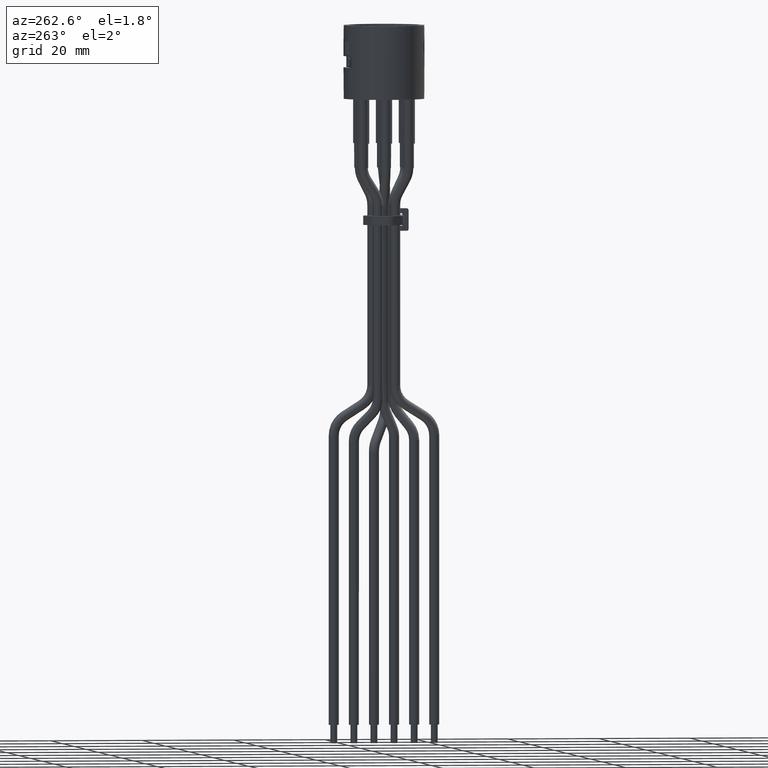
[diagram: clean part render]
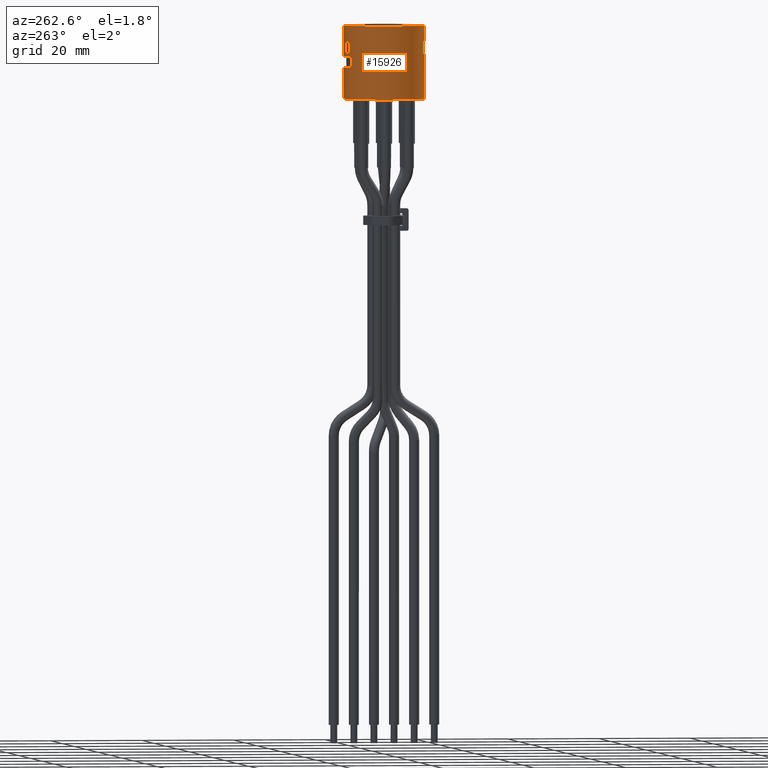
[diagram: same view with one face highlighted and labeled with its STEP entity id]
A machine part, auxiliary view. The second image highlights one B-rep face of the part: STEP entity #15926.
In plain terms, the highlighted cylindrical surface (bore or boss wall) has radius 8.8 mm, axis along (-0, -0, 1).
Its self-contained STEP definition (entity closure, byte-faithful):
#146=ELLIPSE('',#16801,12.4450793488832,8.8);
#147=ELLIPSE('',#16803,12.4450793488832,8.8);
#311=FACE_BOUND('',#2140,.T.);
#312=FACE_BOUND('',#2141,.T.);
#313=FACE_BOUND('',#2142,.T.);
#314=FACE_BOUND('',#2143,.T.);
#315=FACE_BOUND('',#2144,.T.);
#1284=FACE_OUTER_BOUND('',#2139,.T.);
#2139=EDGE_LOOP('',(#12694,#12695,#12696,#12697,#12698,#12699,#12700,#12701,
#12702,#12703,#12704,#12705));
#2140=EDGE_LOOP('',(#12706,#12707,#12708,#12709));
#2141=EDGE_LOOP('',(#12710,#12711,#12712,#12713));
#2142=EDGE_LOOP('',(#12714,#12715,#12716,#12717));
#2143=EDGE_LOOP('',(#12718,#12719,#12720,#12721));
#2144=EDGE_LOOP('',(#12722,#12723,#12724,#12725));
#2708=CIRCLE('',#16734,8.8);
#2753=CIRCLE('',#16828,8.8);
#2754=CIRCLE('',#16829,8.8);
#2755=CIRCLE('',#16831,8.8);
#2756=CIRCLE('',#16832,8.8);
#2757=CIRCLE('',#16834,8.8);
#2758=CIRCLE('',#16835,8.8);
#2759=CIRCLE('',#16836,8.8);
#2760=CIRCLE('',#16837,8.8);
#2761=CIRCLE('',#16838,8.8);
#2762=CIRCLE('',#16839,8.8);
#2763=CIRCLE('',#16840,8.8);
#2764=CIRCLE('',#16841,8.8);
#2765=CIRCLE('',#16842,8.8);
#4118=LINE('',#24287,#5948);
#4119=LINE('',#24288,#5949);
#4190=LINE('',#24876,#6020);
#4192=LINE('',#24880,#6022);
#4194=LINE('',#24894,#6024);
#4195=LINE('',#24895,#6025);
#4196=LINE('',#24900,#6026);
#4197=LINE('',#24903,#6027);
#4198=LINE('',#24908,#6028);
#4199=LINE('',#24911,#6029);
#4200=LINE('',#24916,#6030);
#4201=LINE('',#24919,#6031);
#4202=LINE('',#24924,#6032);
#4203=LINE('',#24927,#6033);
#5948=VECTOR('',#19414,10.);
#5949=VECTOR('',#19415,10.);
#6020=VECTOR('',#19528,10.);
#6022=VECTOR('',#19530,10.);
#6024=VECTOR('',#19550,8.8);
#6025=VECTOR('',#19551,8.8);
#6026=VECTOR('',#19554,10.);
#6027=VECTOR('',#19557,10.);
#6028=VECTOR('',#19560,10.);
#6029=VECTOR('',#19563,10.);
#6030=VECTOR('',#19566,10.);
#6031=VECTOR('',#19569,10.);
#6032=VECTOR('',#19572,10.);
#6033=VECTOR('',#19575,10.);
#7420=VERTEX_POINT('',#23779);
#7612=VERTEX_POINT('',#24277);
#7613=VERTEX_POINT('',#24278);
#7614=VERTEX_POINT('',#24282);
#7615=VERTEX_POINT('',#24283);
#7692=VERTEX_POINT('',#24874);
#7693=VERTEX_POINT('',#24875);
#7694=VERTEX_POINT('',#24877);
#7695=VERTEX_POINT('',#24879);
#7696=VERTEX_POINT('',#24884);
#7697=VERTEX_POINT('',#24888);
#7698=VERTEX_POINT('',#24892);
#7699=VERTEX_POINT('',#24896);
#7700=VERTEX_POINT('',#24897);
#7701=VERTEX_POINT('',#24899);
#7702=VERTEX_POINT('',#24901);
#7703=VERTEX_POINT('',#24904);
#7704=VERTEX_POINT('',#24905);
#7705=VERTEX_POINT('',#24907);
#7706=VERTEX_POINT('',#24909);
#7707=VERTEX_POINT('',#24912);
#7708=VERTEX_POINT('',#24913);
#7709=VERTEX_POINT('',#24915);
#7710=VERTEX_POINT('',#24917);
#7711=VERTEX_POINT('',#24920);
#7712=VERTEX_POINT('',#24921);
#7713=VERTEX_POINT('',#24923);
#7714=VERTEX_POINT('',#24925);
#9242=EDGE_CURVE('',#7420,#7420,#2708,.T.);
#9457=EDGE_CURVE('',#7612,#7613,#146,.T.);
#9459=EDGE_CURVE('',#7614,#7615,#147,.T.);
#9461=EDGE_CURVE('',#7615,#7612,#4118,.T.);
#9462=EDGE_CURVE('',#7613,#7614,#4119,.T.);
#9577=EDGE_CURVE('',#7692,#7693,#4190,.T.);
#9579=EDGE_CURVE('',#7695,#7694,#4192,.T.);
#9581=EDGE_CURVE('',#7693,#7696,#2753,.T.);
#9582=EDGE_CURVE('',#7696,#7695,#2754,.T.);
#9583=EDGE_CURVE('',#7694,#7697,#2755,.T.);
#9584=EDGE_CURVE('',#7697,#7692,#2756,.T.);
#9585=EDGE_CURVE('',#7698,#7698,#2757,.T.);
#9586=EDGE_CURVE('',#7698,#7696,#4194,.T.);
#9587=EDGE_CURVE('',#7697,#7420,#4195,.T.);
#9588=EDGE_CURVE('',#7699,#7700,#2758,.T.);
#9589=EDGE_CURVE('',#7700,#7701,#4196,.T.);
#9590=EDGE_CURVE('',#7701,#7702,#2759,.T.);
#9591=EDGE_CURVE('',#7702,#7699,#4197,.T.);
#9592=EDGE_CURVE('',#7703,#7704,#2760,.T.);
#9593=EDGE_CURVE('',#7704,#7705,#4198,.T.);
#9594=EDGE_CURVE('',#7705,#7706,#2761,.T.);
#9595=EDGE_CURVE('',#7706,#7703,#4199,.T.);
#9596=EDGE_CURVE('',#7707,#7708,#2762,.T.);
#9597=EDGE_CURVE('',#7708,#7709,#4200,.T.);
#9598=EDGE_CURVE('',#7709,#7710,#2763,.T.);
#9599=EDGE_CURVE('',#7710,#7707,#4201,.T.);
#9600=EDGE_CURVE('',#7711,#7712,#2764,.T.);
#9601=EDGE_CURVE('',#7712,#7713,#4202,.T.);
#9602=EDGE_CURVE('',#7713,#7714,#2765,.T.);
#9603=EDGE_CURVE('',#7714,#7711,#4203,.T.);
#12694=ORIENTED_EDGE('',*,*,#9585,.T.);
#12695=ORIENTED_EDGE('',*,*,#9586,.T.);
#12696=ORIENTED_EDGE('',*,*,#9582,.T.);
#12697=ORIENTED_EDGE('',*,*,#9579,.T.);
#12698=ORIENTED_EDGE('',*,*,#9583,.T.);
#12699=ORIENTED_EDGE('',*,*,#9587,.T.);
#12700=ORIENTED_EDGE('',*,*,#9242,.F.);
#12701=ORIENTED_EDGE('',*,*,#9587,.F.);
#12702=ORIENTED_EDGE('',*,*,#9584,.T.);
#12703=ORIENTED_EDGE('',*,*,#9577,.T.);
#12704=ORIENTED_EDGE('',*,*,#9581,.T.);
#12705=ORIENTED_EDGE('',*,*,#9586,.F.);
#12706=ORIENTED_EDGE('',*,*,#9459,.T.);
#12707=ORIENTED_EDGE('',*,*,#9461,.T.);
#12708=ORIENTED_EDGE('',*,*,#9457,.T.);
#12709=ORIENTED_EDGE('',*,*,#9462,.T.);
#12710=ORIENTED_EDGE('',*,*,#9588,.T.);
#12711=ORIENTED_EDGE('',*,*,#9589,.T.);
#12712=ORIENTED_EDGE('',*,*,#9590,.T.);
#12713=ORIENTED_EDGE('',*,*,#9591,.T.);
#12714=ORIENTED_EDGE('',*,*,#9592,.T.);
#12715=ORIENTED_EDGE('',*,*,#9593,.T.);
#12716=ORIENTED_EDGE('',*,*,#9594,.T.);
#12717=ORIENTED_EDGE('',*,*,#9595,.T.);
#12718=ORIENTED_EDGE('',*,*,#9596,.T.);
#12719=ORIENTED_EDGE('',*,*,#9597,.T.);
#12720=ORIENTED_EDGE('',*,*,#9598,.T.);
#12721=ORIENTED_EDGE('',*,*,#9599,.T.);
#12722=ORIENTED_EDGE('',*,*,#9600,.T.);
#12723=ORIENTED_EDGE('',*,*,#9601,.T.);
#12724=ORIENTED_EDGE('',*,*,#9602,.T.);
#12725=ORIENTED_EDGE('',*,*,#9603,.T.);
#15506=CYLINDRICAL_SURFACE('',#16833,8.8);
#15926=ADVANCED_FACE('',(#1284,#311,#312,#313,#314,#315),#15506,.T.);
#16734=AXIS2_PLACEMENT_3D('',#23780,#19122,#19123);
#16801=AXIS2_PLACEMENT_3D('',#24279,#19404,#19405);
#16803=AXIS2_PLACEMENT_3D('',#24284,#19409,#19410);
#16828=AXIS2_PLACEMENT_3D('',#24885,#19536,#19537);
#16829=AXIS2_PLACEMENT_3D('',#24886,#19538,#19539);
#16831=AXIS2_PLACEMENT_3D('',#24889,#19542,#19543);
#16832=AXIS2_PLACEMENT_3D('',#24890,#19544,#19545);
#16833=AXIS2_PLACEMENT_3D('',#24891,#19546,#19547);
#16834=AXIS2_PLACEMENT_3D('',#24893,#19548,#19549);
#16835=AXIS2_PLACEMENT_3D('',#24898,#19552,#19553);
#16836=AXIS2_PLACEMENT_3D('',#24902,#19555,#19556);
#16837=AXIS2_PLACEMENT_3D('',#24906,#19558,#19559);
#16838=AXIS2_PLACEMENT_3D('',#24910,#19561,#19562);
#16839=AXIS2_PLACEMENT_3D('',#24914,#19564,#19565);
#16840=AXIS2_PLACEMENT_3D('',#24918,#19567,#19568);
#16841=AXIS2_PLACEMENT_3D('',#24922,#19570,#19571);
#16842=AXIS2_PLACEMENT_3D('',#24926,#19573,#19574);
#19122=DIRECTION('center_axis',(1.20932309861026E-30,7.67441665772139E-15,
-1.));
#19123=DIRECTION('ref_axis',(4.94088262902456E-17,-1.,-7.67441665772139E-15));
#19404=DIRECTION('center_axis',(-0.707106781186548,-5.46156937644609E-15,
0.707106781186548));
#19405=DIRECTION('ref_axis',(0.707106781186547,-5.39169474420549E-15,0.707106781186547));
#19409=DIRECTION('center_axis',(-0.707106781186548,5.39169474420549E-15,
-0.707106781186548));
#19410=DIRECTION('ref_axis',(0.707106781186547,5.46156937644609E-15,-0.707106781186547));
#19414=DIRECTION('',(-1.20932309861026E-30,-7.67441665772139E-15,1.));
#19415=DIRECTION('',(1.20932309861026E-30,7.67441665772139E-15,-1.));
#19528=DIRECTION('',(-1.20932309861026E-30,-7.67441665772139E-15,1.));
#19530=DIRECTION('',(1.20932309861026E-30,7.67441665772139E-15,-1.));
#19536=DIRECTION('center_axis',(-1.20932309861026E-30,-7.67441665772139E-15,
1.));
#19537=DIRECTION('ref_axis',(4.94088262902456E-17,-1.,-7.67441665772139E-15));
#19538=DIRECTION('center_axis',(-1.20932309861026E-30,-7.67441665772139E-15,
1.));
#19539=DIRECTION('ref_axis',(4.94088262902456E-17,-1.,-7.67441665772139E-15));
#19542=DIRECTION('center_axis',(1.20932309861026E-30,7.67441665772139E-15,
-1.));
#19543=DIRECTION('ref_axis',(4.94088262902456E-17,-1.,-7.67441665772139E-15));
#19544=DIRECTION('center_axis',(1.20932309861026E-30,7.67441665772139E-15,
-1.));
#19545=DIRECTION('ref_axis',(4.94088262902456E-17,-1.,-7.67441665772139E-15));
#19546=DIRECTION('center_axis',(-1.20932309861026E-30,-7.67441665772139E-15,
1.));
#19547=DIRECTION('ref_axis',(4.94088262902456E-17,-1.,-7.67441665772139E-15));
#19548=DIRECTION('center_axis',(1.20932309861026E-30,7.67441665772139E-15,
-1.));
#19549=DIRECTION('ref_axis',(4.94088262902456E-17,-1.,-7.67441665772139E-15));
#19550=DIRECTION('',(1.20932309861026E-30,7.67441665772139E-15,-1.));
#19551=DIRECTION('',(1.20932309861026E-30,7.67441665772139E-15,-1.));
#19552=DIRECTION('center_axis',(-1.11022302462516E-15,-7.67441665772139E-15,
1.));
#19553=DIRECTION('ref_axis',(4.94088262902456E-17,-1.,-7.67441665772139E-15));
#19554=DIRECTION('',(1.20932309861026E-30,7.67441665772139E-15,-1.));
#19555=DIRECTION('center_axis',(1.20932309861026E-30,7.67441665772139E-15,
-1.));
#19556=DIRECTION('ref_axis',(4.94088262902456E-17,-1.,-7.67441665772139E-15));
#19557=DIRECTION('',(-1.20932309861026E-30,-7.67441665772139E-15,1.));
#19558=DIRECTION('center_axis',(-1.11022302462516E-15,-7.67441665772139E-15,
1.));
#19559=DIRECTION('ref_axis',(4.94088262902456E-17,-1.,-7.67441665772139E-15));
#19560=DIRECTION('',(1.20932309861026E-30,7.67441665772139E-15,-1.));
#19561=DIRECTION('center_axis',(1.20932309861026E-30,7.67441665772139E-15,
-1.));
#19562=DIRECTION('ref_axis',(4.94088262902456E-17,-1.,-7.67441665772139E-15));
#19563=DIRECTION('',(-1.20932309861026E-30,-7.67441665772139E-15,1.));
#19564=DIRECTION('center_axis',(-1.11022302462516E-15,-7.67441665772139E-15,
1.));
#19565=DIRECTION('ref_axis',(4.94088262902456E-17,-1.,-7.67441665772139E-15));
#19566=DIRECTION('',(1.20932309861026E-30,7.67441665772139E-15,-1.));
#19567=DIRECTION('center_axis',(1.20932309861026E-30,7.67441665772139E-15,
-1.));
#19568=DIRECTION('ref_axis',(4.94088262902456E-17,-1.,-7.67441665772139E-15));
#19569=DIRECTION('',(-1.20932309861026E-30,-7.67441665772139E-15,1.));
#19570=DIRECTION('center_axis',(-1.11022302462516E-15,-7.67441665772139E-15,
1.));
#19571=DIRECTION('ref_axis',(4.94088262902456E-17,-1.,-7.67441665772139E-15));
#19572=DIRECTION('',(1.20932309861026E-30,7.67441665772139E-15,-1.));
#19573=DIRECTION('center_axis',(1.20932309861026E-30,7.67441665772139E-15,
-1.));
#19574=DIRECTION('ref_axis',(4.94088262902456E-17,-1.,-7.67441665772139E-15));
#19575=DIRECTION('',(-1.20932309861026E-30,-7.67441665772139E-15,1.));
#23779=CARTESIAN_POINT('',(-1.51248685460383E-15,8.8,6.75348665879482E-14));
#23780=CARTESIAN_POINT('Origin',(3.50324616081204E-45,0.,0.));
#24277=CARTESIAN_POINT('',(8.1,-3.43947670438405,8.89999999999998));
#24278=CARTESIAN_POINT('',(8.1,3.43947670438391,8.90000000000003));
#24279=CARTESIAN_POINT('Origin',(-9.67458478888212E-31,-6.13953332617716E-15,
0.800000000000006));
#24282=CARTESIAN_POINT('',(8.1,3.43947670438392,7.40000000000003));
#24283=CARTESIAN_POINT('',(8.1,-3.43947670438404,7.39999999999998));
#24284=CARTESIAN_POINT('Origin',(-1.8744508028459E-29,-1.18953458194682E-13,
15.5));
#24287=CARTESIAN_POINT('',(8.1,-3.43947670438398,-2.63959773139691E-14));
#24288=CARTESIAN_POINT('',(8.1,3.43947670438398,2.63959773139691E-14));
#24874=CARTESIAN_POINT('',(4.26028168082816,7.69999999999995,6.80000000000006));
#24875=CARTESIAN_POINT('',(4.26028168082816,7.69999999999993,9.30000000000006));
#24876=CARTESIAN_POINT('',(4.26028168082816,7.7,5.90930082644547E-14));
#24877=CARTESIAN_POINT('',(-4.26028168082817,7.69999999999995,6.80000000000006));
#24879=CARTESIAN_POINT('',(-4.26028168082817,7.69999999999993,9.30000000000006));
#24880=CARTESIAN_POINT('',(-4.26028168082817,7.7,5.90930082644547E-14));
#24884=CARTESIAN_POINT('',(-1.51248685460384E-15,8.79999999999993,9.30000000000007));
#24885=CARTESIAN_POINT('Origin',(-1.12467048170754E-29,-7.13720749168089E-14,
9.3));
#24886=CARTESIAN_POINT('Origin',(-1.12467048170754E-29,-7.13720749168089E-14,
9.3));
#24888=CARTESIAN_POINT('',(-1.51248685460384E-15,8.79999999999995,6.80000000000007));
#24889=CARTESIAN_POINT('Origin',(-8.22339707054976E-30,-5.21860332725054E-14,
6.8));
#24890=CARTESIAN_POINT('Origin',(-8.22339707054976E-30,-5.21860332725054E-14,
6.8));
#24891=CARTESIAN_POINT('Origin',(3.50324616081204E-45,0.,0.));
#24892=CARTESIAN_POINT('',(6.42891511895491E-16,8.79999999999988,16.0000000000001));
#24893=CARTESIAN_POINT('Origin',(-1.93491695777642E-29,-1.22790666523542E-13,
16.));
#24894=CARTESIAN_POINT('',(-1.51248685460383E-15,8.8,6.75348665879482E-14));
#24895=CARTESIAN_POINT('',(-1.51248685460383E-15,8.8,6.75348665879482E-14));
#24896=CARTESIAN_POINT('',(-3.5,-8.07403244977388,12.4999999999999));
#24897=CARTESIAN_POINT('',(-1.5,-8.67121675429704,12.4999999999999));
#24898=CARTESIAN_POINT('Origin',(-1.51165387326282E-29,-9.59302082215173E-14,
12.5));
#24899=CARTESIAN_POINT('',(-1.5,-8.67121675429702,9.89999999999993));
#24900=CARTESIAN_POINT('',(-1.5,-8.67121675429695,-6.65465303018893E-14));
#24901=CARTESIAN_POINT('',(-3.5,-8.07403244977386,9.89999999999994));
#24902=CARTESIAN_POINT('Origin',(-1.19722986762416E-29,-7.59767249114417E-14,
9.9));
#24903=CARTESIAN_POINT('',(-3.5,-8.07403244977379,-6.1963489127527E-14));
#24904=CARTESIAN_POINT('',(-1.5,8.67121675429685,12.5000000000001));
#24905=CARTESIAN_POINT('',(-3.5,8.07403244977369,12.5000000000001));
#24906=CARTESIAN_POINT('Origin',(-1.51165387326282E-29,-9.59302082215173E-14,
12.5));
#24907=CARTESIAN_POINT('',(-3.5,8.07403244977371,9.90000000000006));
#24908=CARTESIAN_POINT('',(-3.5,8.07403244977379,6.19634891275269E-14));
#24909=CARTESIAN_POINT('',(-1.5,8.67121675429687,9.90000000000007));
#24910=CARTESIAN_POINT('Origin',(-1.19722986762416E-29,-7.59767249114417E-14,
9.9));
#24911=CARTESIAN_POINT('',(-1.5,8.67121675429695,6.65465303018893E-14));
#24912=CARTESIAN_POINT('',(1.5,-8.67121675429704,12.4999999999999));
#24913=CARTESIAN_POINT('',(3.5,-8.07403244977388,12.4999999999999));
#24914=CARTESIAN_POINT('Origin',(-1.51165387326282E-29,-9.59302082215174E-14,
12.5));
#24915=CARTESIAN_POINT('',(3.5,-8.07403244977386,9.89999999999994));
#24916=CARTESIAN_POINT('',(3.5,-8.07403244977378,-6.19634891275269E-14));
#24917=CARTESIAN_POINT('',(1.5,-8.67121675429702,9.89999999999993));
#24918=CARTESIAN_POINT('Origin',(-1.19722986762416E-29,-7.59767249114417E-14,
9.9));
#24919=CARTESIAN_POINT('',(1.5,-8.67121675429694,-6.65465303018893E-14));
#24920=CARTESIAN_POINT('',(3.5,8.07403244977369,12.5000000000001));
#24921=CARTESIAN_POINT('',(1.5,8.67121675429685,12.5000000000001));
#24922=CARTESIAN_POINT('Origin',(-1.51165387326282E-29,-9.59302082215174E-14,
12.5));
#24923=CARTESIAN_POINT('',(1.5,8.67121675429687,9.90000000000007));
#24924=CARTESIAN_POINT('',(1.5,8.67121675429694,6.65465303018893E-14));
#24925=CARTESIAN_POINT('',(3.5,8.07403244977371,9.90000000000006));
#24926=CARTESIAN_POINT('Origin',(-1.19722986762416E-29,-7.59767249114417E-14,
9.9));
#24927=CARTESIAN_POINT('',(3.5,8.07403244977378,6.19634891275269E-14));